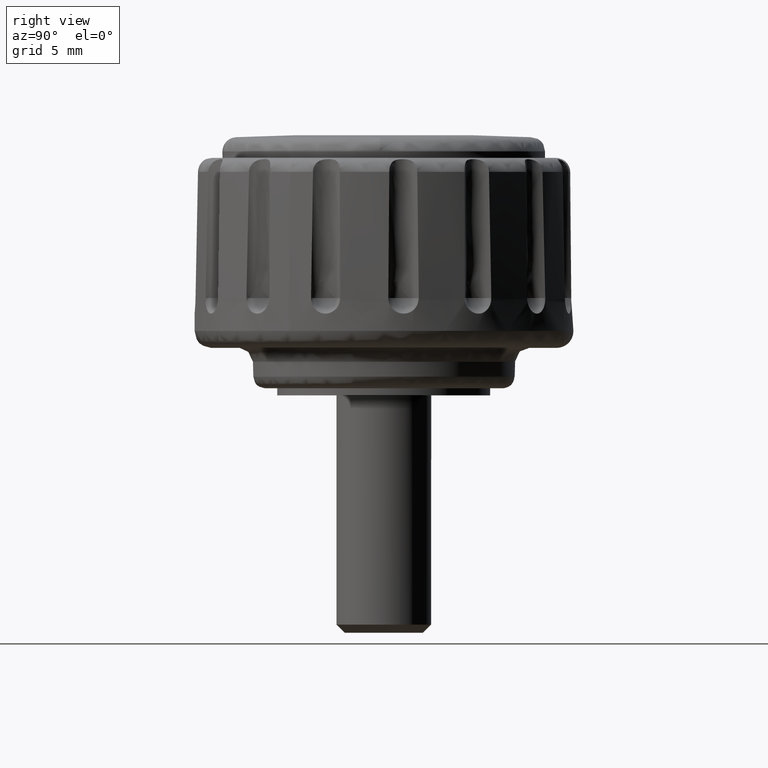
[diagram: clean part render]
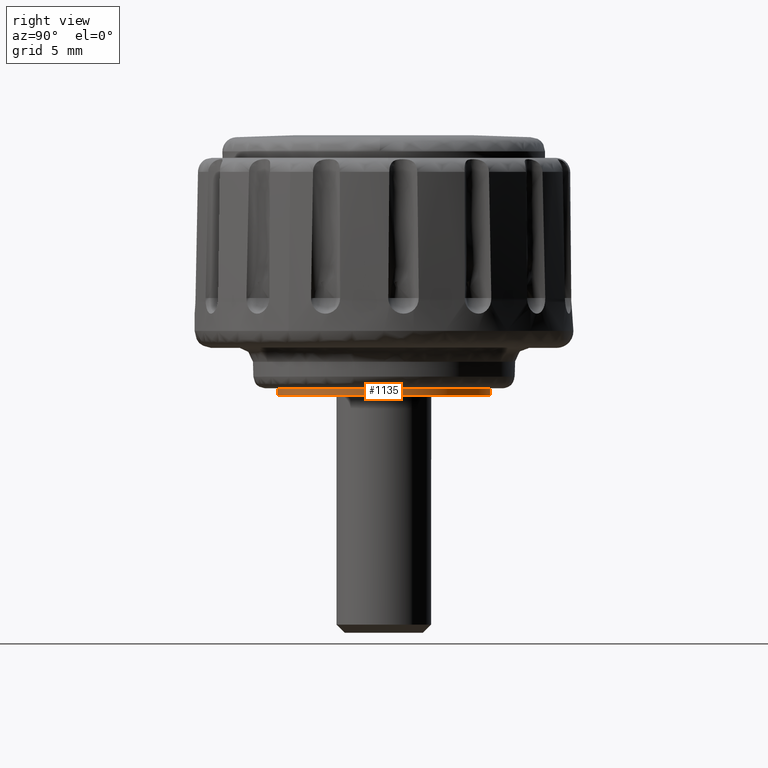
[diagram: same view with one face highlighted and labeled with its STEP entity id]
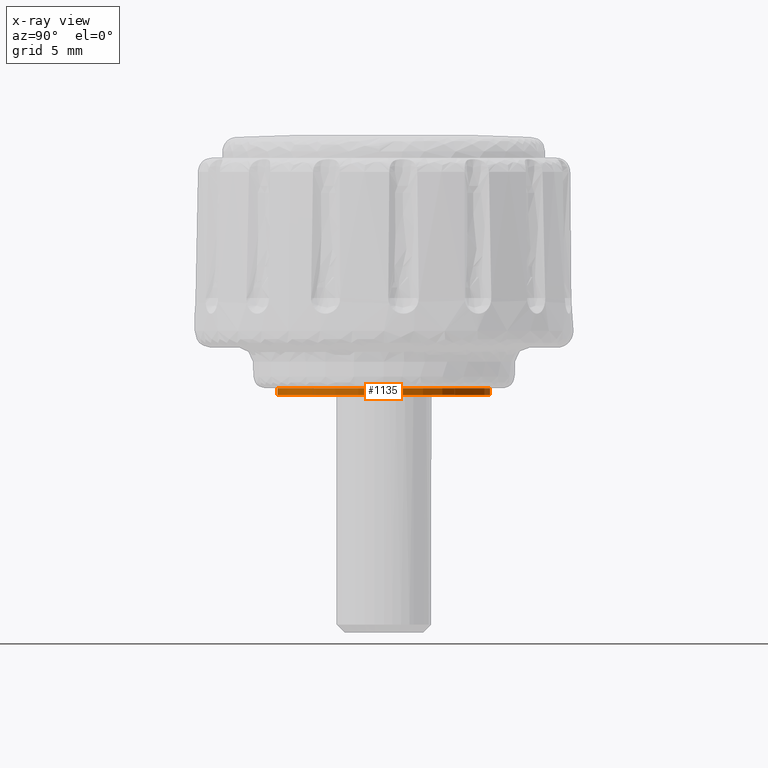
[diagram: x-ray of the same camera — body ghosted, the highlighted face saturated]
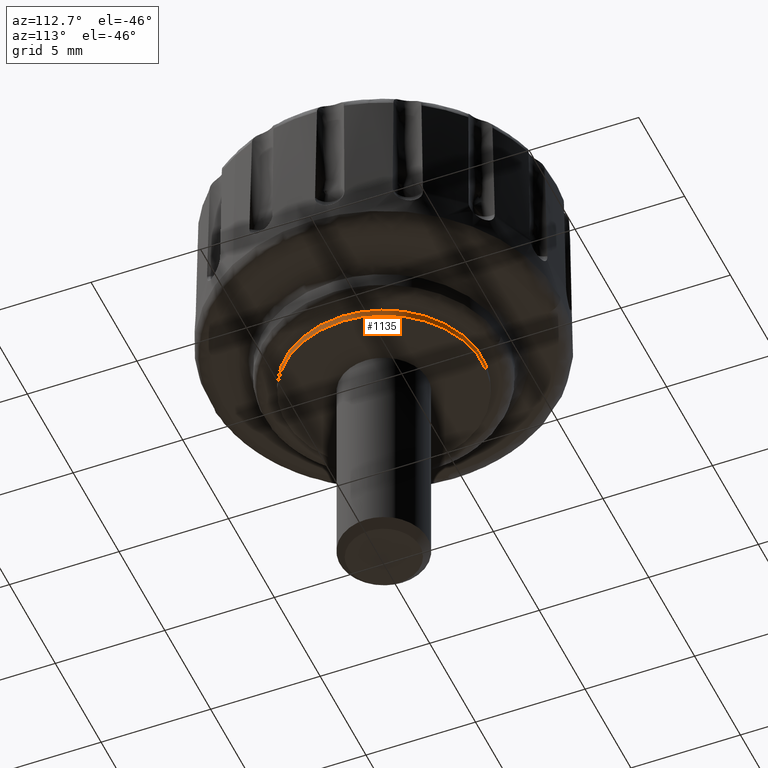
[diagram: same view with one face highlighted and labeled with its STEP entity id]
A machine part, right view. The second image highlights one B-rep face of the part: STEP entity #1135.
The next image is the same camera in x-ray: the body ghosted, the highlighted face saturated — about 0% of this face is hidden behind the body in this view.
A second angle (auxiliary view) of the same face is appended — the face is thin or edge-on in the first view.
In plain terms, the highlighted face is a freeform B-spline surface patch.
Its self-contained STEP definition (entity closure, byte-faithful):
#1033=CARTESIAN_POINT('',(-0.531154055955413,4.468542868636499,0.307503075000004));
#1034=CARTESIAN_POINT('',(-0.403266278870900,4.483744269518725,0.307503075000004));
#1035=CARTESIAN_POINT('',(-0.274718427906856,4.491606592898400,0.307503075000004));
#1036=CARTESIAN_POINT('',(4.216888164991543,4.766325020805256,0.307503075000004));
#1037=CARTESIAN_POINT('',(4.491606592898400,0.274718427906856,0.307503075000004));
#1038=CARTESIAN_POINT('',(4.766325020805256,-4.216888164991543,0.307503075000004));
#1039=CARTESIAN_POINT('',(0.274718427906856,-4.491606592898400,0.307503075000004));
#1040=CARTESIAN_POINT('',(-0.531154055955413,4.468542868636499,-0.007687576875000));
#1041=CARTESIAN_POINT('',(-0.403266278870900,4.483744269518725,-0.007687576875000));
#1042=CARTESIAN_POINT('',(-0.274718427906856,4.491606592898400,-0.007687576875000));
#1043=CARTESIAN_POINT('',(4.216888164991543,4.766325020805256,-0.007687576875000));
#1044=CARTESIAN_POINT('',(4.491606592898400,0.274718427906856,-0.007687576875000));
#1045=CARTESIAN_POINT('',(4.766325020805256,-4.216888164991543,-0.007687576875000));
#1046=CARTESIAN_POINT('',(0.274718427906856,-4.491606592898400,-0.007687576875000));
#1054=(BOUNDED_SURFACE()B_SPLINE_SURFACE(2,1,((#1033,#1040),(#1034,#1041),(#1035,#1042),(#1036,#1043),(#1037,#1044),(#1038,#1045),(#1039,#1046)),.UNSPECIFIED.,.F.,.F.,.U.)B_SPLINE_SURFACE_WITH_KNOTS((3,2,2,3),(2,2),(0.0,0.298233764908629,7.754077887624337,15.209922010340049),(0.0,0.315190651875004),.UNSPECIFIED.)GEOMETRIC_REPRESENTATION_ITEM()RATIONAL_B_SPLINE_SURFACE(((0.977505800795127,0.977505800795127),(0.988284271247462,0.988284271247462),(1.0,1.0),(0.707106781186548,0.707106781186548),(1.0,1.0),(0.707106781186548,0.707106781186548),(1.0,1.0)))REPRESENTATION_ITEM('')SURFACE());
#1055=CARTESIAN_POINT('',(-0.531154058179590,4.468542868372122,2.218303E-017));
#1056=VERTEX_POINT('',#1055);
#1057=CARTESIAN_POINT('',(4.500000000000000,0.0,0.0));
#1058=VERTEX_POINT('',#1057);
#1059=CARTESIAN_POINT('',(-0.531154058179590,4.468542868372123,2.218303E-017));
#1060=CARTESIAN_POINT('',(-0.266508540681286,4.499999999999999,0.0));
#1061=CARTESIAN_POINT('',(0.0,4.500000000000000,0.0));
#1062=CARTESIAN_POINT('',(4.500000000000000,4.500000000000000,0.0));
#1063=CARTESIAN_POINT('',(4.500000000000000,0.0,0.0));
#1071=(BOUNDED_CURVE()B_SPLINE_CURVE(2,(#1059,#1060,#1061,#1062,#1063),.UNSPECIFIED.,.F.,.U.)B_SPLINE_CURVE_WITH_KNOTS((3,2,3),(0.229562473347405,0.250000000000000,0.500000000000000),.UNSPECIFIED.)CURVE()GEOMETRIC_REPRESENTATION_ITEM()RATIONAL_B_SPLINE_CURVE((0.956026753858129,0.976055948136542,1.0,0.707106781186547,1.0))REPRESENTATION_ITEM(''));
#1072=EDGE_CURVE('',#1056,#1058,#1071,.T.);
#1073=ORIENTED_EDGE('',*,*,#1072,.F.);
#1074=CARTESIAN_POINT('',(-0.531154058179590,4.468542868372122,0.300003000000004));
#1075=VERTEX_POINT('',#1074);
#1076=CARTESIAN_POINT('',(-0.531154058179590,4.468542868372122,0.300003000000004));
#1077=CARTESIAN_POINT('',(-0.531154058179590,4.468542868372122,2.218303E-017));
#1078=QUASI_UNIFORM_CURVE('',1,(#1076,#1077),.UNSPECIFIED.,.F.,.U.);
#1079=EDGE_CURVE('',#1075,#1056,#1078,.T.);
#1080=ORIENTED_EDGE('',*,*,#1079,.F.);
#1081=CARTESIAN_POINT('',(4.500000000000000,0.0,0.300003000000004));
#1082=VERTEX_POINT('',#1081);
#1083=CARTESIAN_POINT('',(-0.531154058179590,4.468542868372123,0.300003000000004));
#1084=CARTESIAN_POINT('',(-0.266508540681286,4.499999999999999,0.300003000000004));
#1085=CARTESIAN_POINT('',(0.0,4.500000000000000,0.300003000000004));
#1086=CARTESIAN_POINT('',(4.500000000000000,4.500000000000000,0.300003000000004));
#1087=CARTESIAN_POINT('',(4.500000000000000,0.0,0.300003000000004));
#1095=(BOUNDED_CURVE()B_SPLINE_CURVE(2,(#1083,#1084,#1085,#1086,#1087),.UNSPECIFIED.,.F.,.U.)B_SPLINE_CURVE_WITH_KNOTS((3,2,3),(0.229562473347405,0.250000000000000,0.500000000000000),.UNSPECIFIED.)CURVE()GEOMETRIC_REPRESENTATION_ITEM()RATIONAL_B_SPLINE_CURVE((0.956026753858129,0.976055948136542,1.0,0.707106781186547,1.0))REPRESENTATION_ITEM(''));
#1096=EDGE_CURVE('',#1075,#1082,#1095,.T.);
#1097=ORIENTED_EDGE('',*,*,#1096,.T.);
#1098=CARTESIAN_POINT('',(0.274714615629476,-4.491606826064026,0.300003000000004));
#1099=VERTEX_POINT('',#1098);
#1100=CARTESIAN_POINT('',(4.500000000000000,0.0,0.300003000000004));
#1101=CARTESIAN_POINT('',(4.499999999999999,-4.233180900724953,0.300003000000004));
#1102=CARTESIAN_POINT('',(0.274714615629476,-4.491606826064026,0.300003000000004));
#1110=(BOUNDED_CURVE()B_SPLINE_CURVE(2,(#1100,#1101,#1102),.UNSPECIFIED.,.F.,.U.)B_SPLINE_CURVE_WITH_KNOTS((3,3),(0.500000000000000,0.739333108692082),.UNSPECIFIED.)CURVE()GEOMETRIC_REPRESENTATION_ITEM()RATIONAL_B_SPLINE_CURVE((1.0,0.719603821706185,0.976072355543874))REPRESENTATION_ITEM(''));
#1111=EDGE_CURVE('',#1082,#1099,#1110,.T.);
#1112=ORIENTED_EDGE('',*,*,#1111,.T.);
#1113=CARTESIAN_POINT('',(0.274714567958497,-4.491606828979627,-3.214777E-013));
#1114=VERTEX_POINT('',#1113);
#1115=CARTESIAN_POINT('',(0.274714615629476,-4.491606826064026,0.300003000000004));
#1116=CARTESIAN_POINT('',(0.274714567958497,-4.491606828979627,-3.214777E-013));
#1117=QUASI_UNIFORM_CURVE('',1,(#1115,#1116),.UNSPECIFIED.,.F.,.U.);
#1118=EDGE_CURVE('',#1099,#1114,#1117,.T.);
#1119=ORIENTED_EDGE('',*,*,#1118,.T.);
#1120=CARTESIAN_POINT('',(4.500000000000000,0.0,0.0));
#1121=CARTESIAN_POINT('',(4.500000000000001,-4.233180945737121,0.0));
#1122=CARTESIAN_POINT('',(0.274714567958497,-4.491606828979627,-3.214777E-013));
#1130=(BOUNDED_CURVE()B_SPLINE_CURVE(2,(#1120,#1121,#1122),.UNSPECIFIED.,.F.,.U.)B_SPLINE_CURVE_WITH_KNOTS((3,3),(0.500000000000000,0.739333110523381),.UNSPECIFIED.)CURVE()GEOMETRIC_REPRESENTATION_ITEM()RATIONAL_B_SPLINE_CURVE((1.0,0.719603819560684,0.976072359468702))REPRESENTATION_ITEM(''));
#1131=EDGE_CURVE('',#1058,#1114,#1130,.T.);
#1132=ORIENTED_EDGE('',*,*,#1131,.F.);
#1133=EDGE_LOOP('',(#1073,#1080,#1097,#1112,#1119,#1132));
#1134=FACE_OUTER_BOUND('',#1133,.T.);
#1135=ADVANCED_FACE('',(#1134),#1054,.T.);